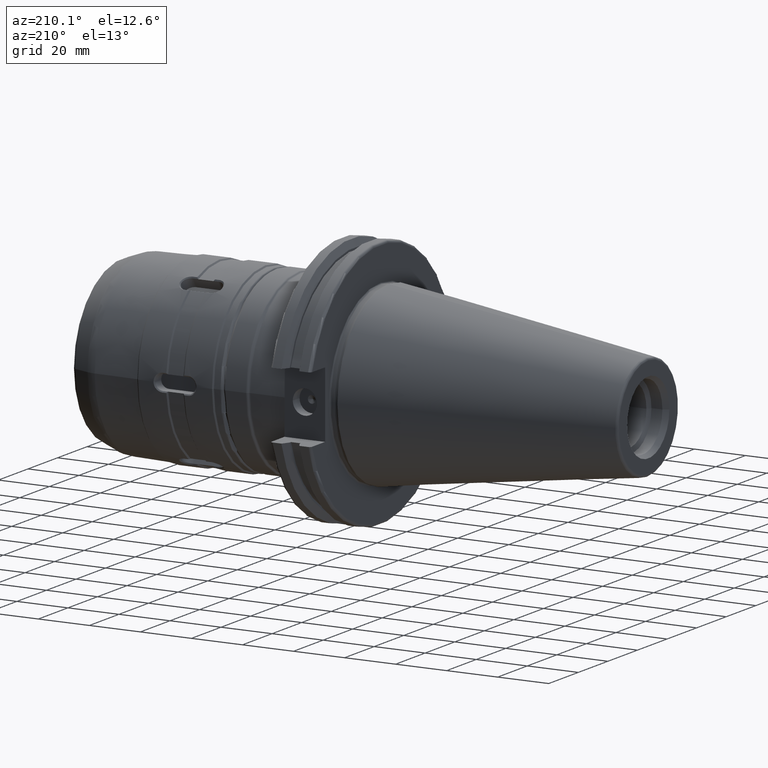
[diagram: clean part render]
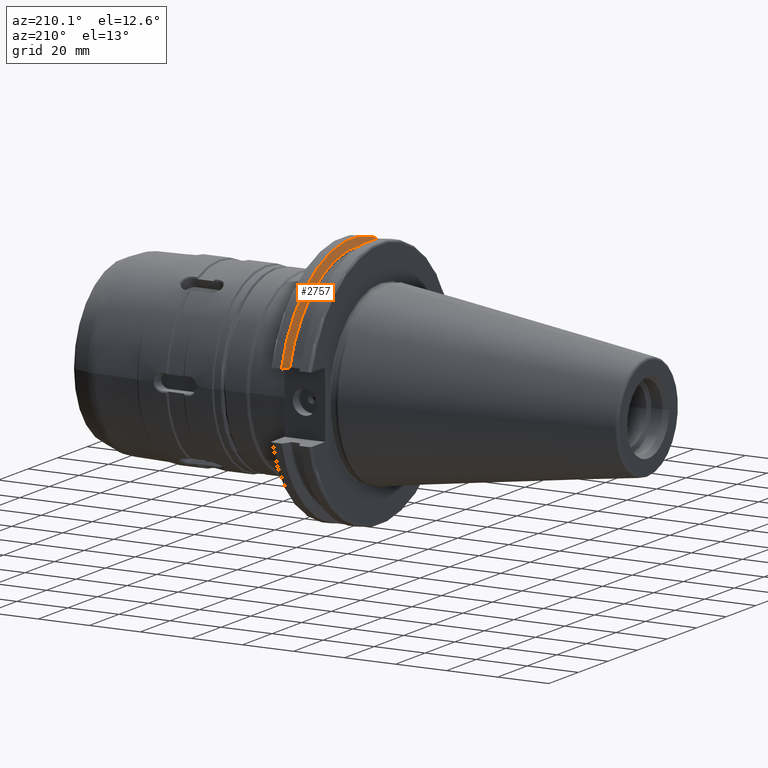
[diagram: same view with one face highlighted and labeled with its STEP entity id]
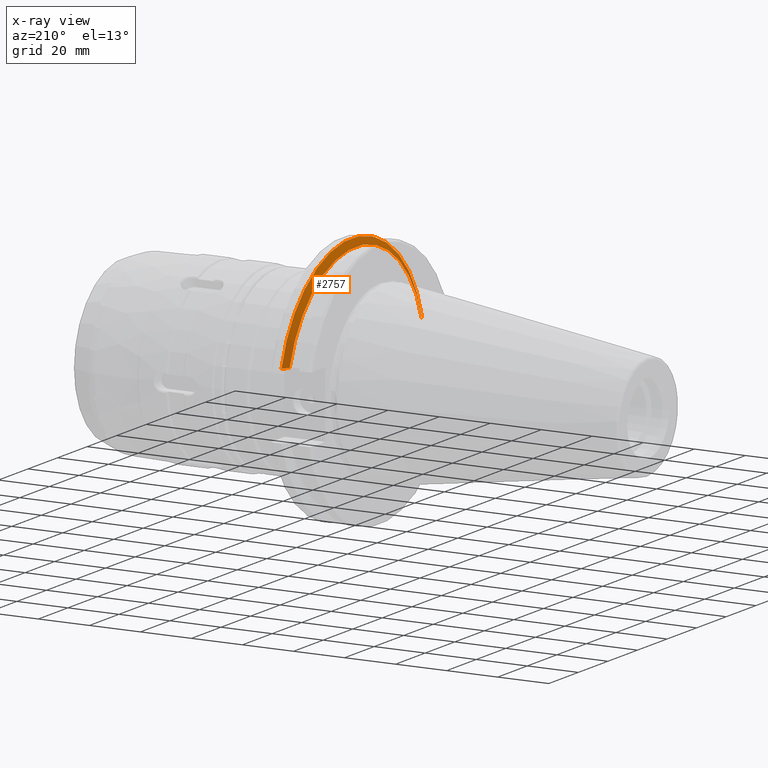
[diagram: x-ray of the same camera — body ghosted, the highlighted face saturated]
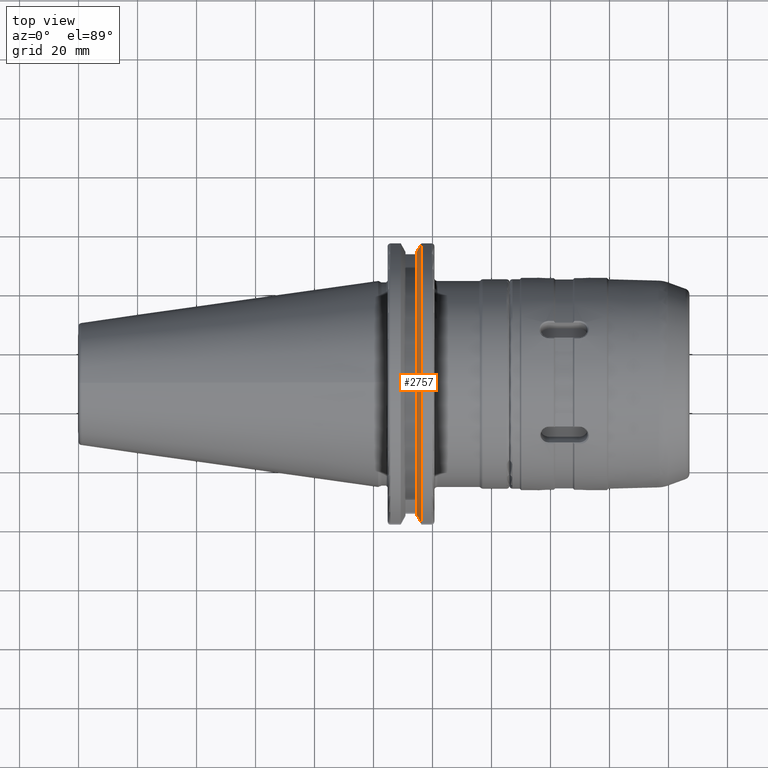
[diagram: same view with one face highlighted and labeled with its STEP entity id]
A machine part, auxiliary view. The second image highlights one B-rep face of the part: STEP entity #2757.
The next image is the same camera in x-ray: the body ghosted, the highlighted face saturated — about 2% of this face is hidden behind the body in this view.
A second angle (top view) of the same face is appended — the face is thin or edge-on in the first view.
In plain terms, the highlighted conical surface has half-angle 60 deg.
Its self-contained STEP definition (entity closure, byte-faithful):
#946=CARTESIAN_POINT('',(1.30556E1,-4.458755675567E1,1.2954E1));
#947=CARTESIAN_POINT('',(1.322955571416E1,-4.490131529853E1,1.2954E1));
#948=CARTESIAN_POINT('',(1.357990482150E1,-4.553271359356E1,1.2954E1));
#949=CARTESIAN_POINT('',(1.411270798225E1,-4.649142682167E1,1.2954E1));
#950=CARTESIAN_POINT('',(1.447279365653E1,-4.713838875629E1,1.2954E1));
#951=CARTESIAN_POINT('',(1.465405195528E1,-4.746381994783E1,1.2954E1));
#953=CARTESIAN_POINT('',(1.30556E1,0.E0,0.E0));
#954=DIRECTION('',(-1.E0,0.E0,0.E0));
#955=DIRECTION('',(0.E0,-9.602930089179E-1,2.789934354486E-1));
#956=AXIS2_PLACEMENT_3D('',#953,#954,#955);
#958=CARTESIAN_POINT('',(1.465405195528E1,4.746381994783E1,1.2954E1));
#959=CARTESIAN_POINT('',(1.447283210415E1,4.713845778516E1,1.2954E1));
#960=CARTESIAN_POINT('',(1.411279759566E1,4.649158791267E1,1.2954E1));
#961=CARTESIAN_POINT('',(1.357999318465E1,4.553287274977E1,1.2954E1));
#962=CARTESIAN_POINT('',(1.322959353821E1,4.490138352059E1,1.2954E1));
#963=CARTESIAN_POINT('',(1.30556E1,4.458755675567E1,1.2954E1));
#965=CARTESIAN_POINT('',(1.465405195528E1,0.E0,0.E0));
#966=DIRECTION('',(1.E0,0.E0,0.E0));
#967=DIRECTION('',(0.E0,9.647157091661E-1,2.632937532266E-1));
#968=AXIS2_PLACEMENT_3D('',#965,#966,#967);
#1140=CARTESIAN_POINT('',(1.30556E1,4.458755675567E1,1.2954E1));
#1141=VERTEX_POINT('',#1140);
#1144=VERTEX_POINT('',#958);
#1162=CARTESIAN_POINT('',(1.30556E1,-4.458755675567E1,1.2954E1));
#1163=VERTEX_POINT('',#1162);
#1166=VERTEX_POINT('',#951);
#2745=CARTESIAN_POINT('',(1.385482597764E1,0.E0,0.E0));
#2746=DIRECTION('',(1.E0,0.E0,0.E0));
#2747=DIRECTION('',(0.E0,0.E0,1.E0));
#2748=AXIS2_PLACEMENT_3D('',#2745,#2746,#2747);
#2749=CONICAL_SURFACE('',#2748,4.78155E1,6.E1);
#2750=ORIENTED_EDGE('',*,*,#2518,.F.);
#2752=ORIENTED_EDGE('',*,*,#2751,.T.);
#2753=ORIENTED_EDGE('',*,*,#2635,.F.);
#2754=ORIENTED_EDGE('',*,*,#2467,.T.);
#2755=EDGE_LOOP('',(#2750,#2752,#2753,#2754));
#2756=FACE_OUTER_BOUND('',#2755,.F.);
#2757=ADVANCED_FACE('',(#2756),#2749,.T.);
#952=B_SPLINE_CURVE_WITH_KNOTS('',3,(#946,#947,#948,#949,#950,#951),
.UNSPECIFIED.,.F.,.F.,(4,1,1,4),(0.E0,3.333333333333E-1,6.666666666667E-1,1.E0),
.UNSPECIFIED.);
#957=CIRCLE('',#956,4.64312E1);
#964=B_SPLINE_CURVE_WITH_KNOTS('',3,(#958,#959,#960,#961,#962,#963),
.UNSPECIFIED.,.F.,.F.,(4,1,1,4),(0.E0,3.333333333333E-1,6.666666666667E-1,1.E0),
.UNSPECIFIED.);
#969=CIRCLE('',#968,4.91998E1);
#2467=EDGE_CURVE('',#1144,#1166,#969,.T.);
#2518=EDGE_CURVE('',#1163,#1166,#952,.T.);
#2635=EDGE_CURVE('',#1144,#1141,#964,.T.);
#2751=EDGE_CURVE('',#1163,#1141,#957,.T.);